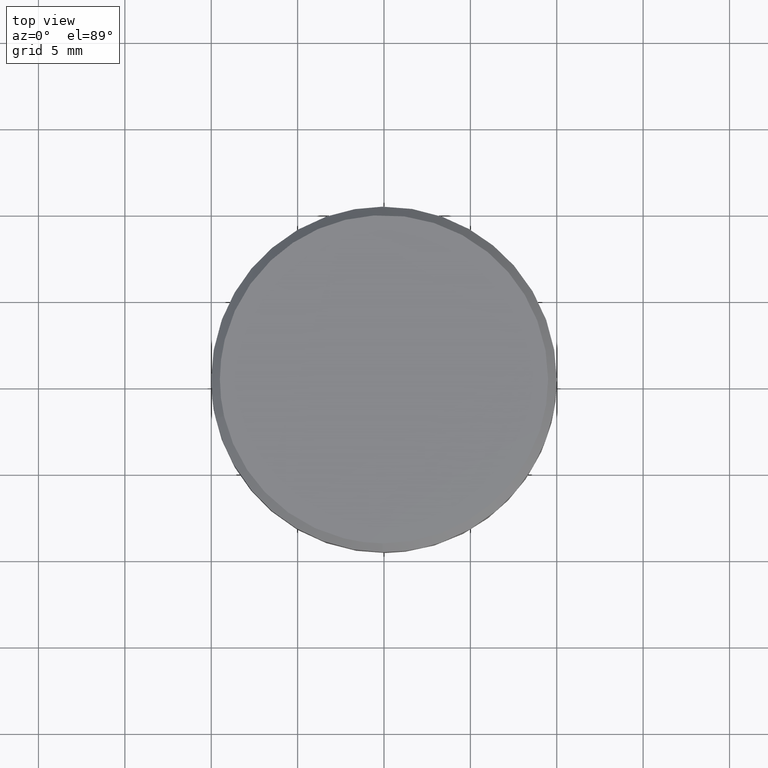
[diagram: clean part render]
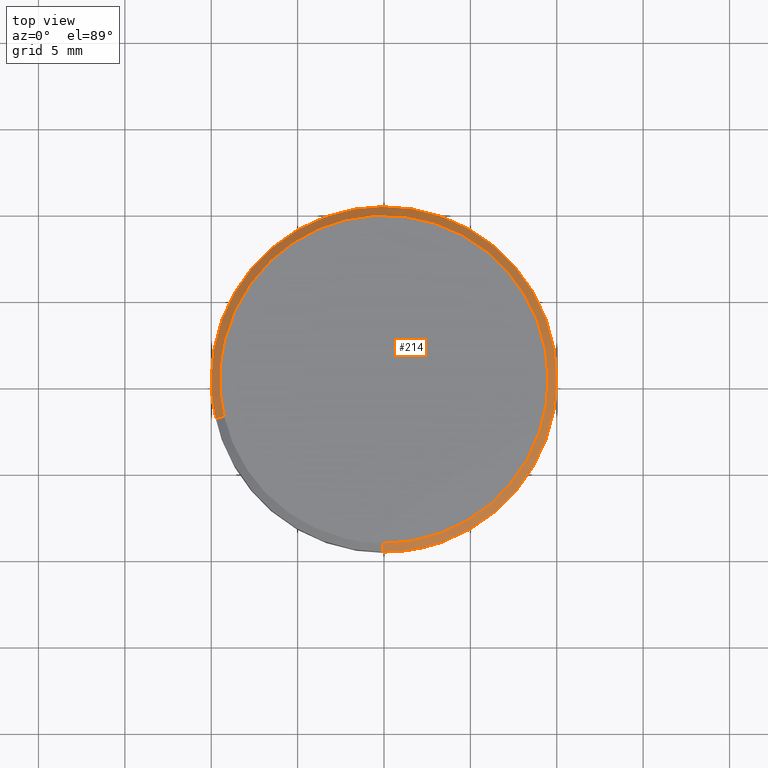
[diagram: same view with one face highlighted and labeled with its STEP entity id]
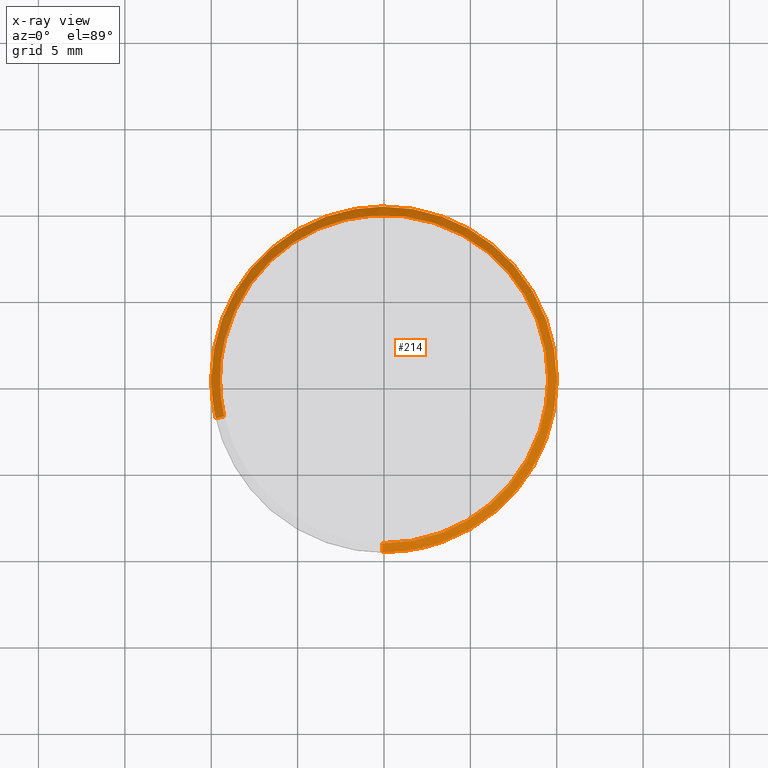
[diagram: x-ray of the same camera — body ghosted, the highlighted face saturated]
A machine part, top view. The second image highlights one B-rep face of the part: STEP entity #214.
The next image is the same camera in x-ray: the body ghosted, the highlighted face saturated — about 0% of this face is hidden behind the body in this view.
In plain terms, the highlighted face is a freeform B-spline surface patch.
Its self-contained STEP definition (entity closure, byte-faithful):
#44=CARTESIAN_POINT('',(-9.242894728281831,-2.140456327958789,11.512500000000115));
#45=CARTESIAN_POINT('',(-9.496966249899218,-1.043327506833363,11.512500000000115));
#46=CARTESIAN_POINT('',(-9.487138745071267,0.082793005540822,11.512500000000120));
#47=CARTESIAN_POINT('',(-9.404345739530445,9.569931750612090,11.512500000000120));
#48=CARTESIAN_POINT('',(0.082793005540822,9.487138745071267,11.512500000000120));
#49=CARTESIAN_POINT('',(9.569931750612090,9.404345739530445,11.512500000000120));
#50=CARTESIAN_POINT('',(9.487138745071267,-0.082793005540822,11.512500000000120));
#51=CARTESIAN_POINT('',(9.404345739530445,-9.569931750612090,11.512500000000120));
#52=CARTESIAN_POINT('',(-0.082793005540822,-9.487138745071267,11.512500000000120));
#53=CARTESIAN_POINT('',(-9.754663701873520,-2.258971054154414,10.987187500000111));
#54=CARTESIAN_POINT('',(-10.022802885804440,-1.101095409962056,10.987187500000115));
#55=CARTESIAN_POINT('',(-10.012431242780981,0.087377163719812,10.987187500000120));
#56=CARTESIAN_POINT('',(-9.925054079061164,10.099808406500786,10.987187500000116));
#57=CARTESIAN_POINT('',(0.087377163719812,10.012431242780981,10.987187500000120));
#58=CARTESIAN_POINT('',(10.099808406500786,9.925054079061164,10.987187500000116));
#59=CARTESIAN_POINT('',(10.012431242780981,-0.087377163719812,10.987187500000120));
#60=CARTESIAN_POINT('',(9.925054079061164,-10.099808406500786,10.987187500000116));
#61=CARTESIAN_POINT('',(-0.087377163719812,-10.012431242780981,10.987187500000120));
#69=(BOUNDED_SURFACE()B_SPLINE_SURFACE(2,1,((#44,#53),(#45,#54),(#46,#55),(#47,#56),(#48,#57),(#49,#58),(#50,#59),(#51,#60),(#52,#61)),.UNSPECIFIED.,.F.,.F.,.U.)B_SPLINE_SURFACE_WITH_KNOTS((3,2,2,2,3),(2,2),(0.0,2.654363350399271,19.244134290394701,35.833905230390137,52.423676170385569),(0.0,1.0),.UNSPECIFIED.)GEOMETRIC_REPRESENTATION_ITEM()RATIONAL_B_SPLINE_SURFACE(((0.921270302782944,0.921270302782944),(0.953137084989848,0.953137084989848),(1.0,1.0),(0.707106781186548,0.707106781186548),(1.0,1.0),(0.707106781186548,0.707106781186548),(1.0,1.0),(0.707106781186548,0.707106781186548),(1.0,1.0)))REPRESENTATION_ITEM('')SURFACE());
#70=CARTESIAN_POINT('',(-9.742181531785423,-2.256080451080788,10.999999999999631));
#71=VERTEX_POINT('',#70);
#72=CARTESIAN_POINT('',(-10.0,0.0,11.000000000000121));
#73=VERTEX_POINT('',#72);
#74=CARTESIAN_POINT('',(-9.742181531785423,-2.256080451080788,10.999999999999632));
#75=CARTESIAN_POINT('',(-10.0,-1.142771606801761,11.000000000000124));
#76=CARTESIAN_POINT('',(-10.0,0.0,11.000000000000121));
#84=(BOUNDED_CURVE()B_SPLINE_CURVE(2,(#74,#75,#76),.UNSPECIFIED.,.F.,.U.)B_SPLINE_CURVE_WITH_KNOTS((3,3),(0.961422971784468,1.0),.UNSPECIFIED.)CURVE()GEOMETRIC_REPRESENTATION_ITEM()RATIONAL_B_SPLINE_CURVE((0.923556557442556,0.954804200134782,1.0))REPRESENTATION_ITEM(''));
#85=EDGE_CURVE('',#71,#73,#84,.T.);
#86=ORIENTED_EDGE('',*,*,#85,.F.);
#87=CARTESIAN_POINT('',(-9.255072455192508,-2.143276428558680,11.499999999995969));
#88=VERTEX_POINT('',#87);
#89=CARTESIAN_POINT('',(-9.255072455192508,-2.143276428558680,11.499999999995969));
#90=CARTESIAN_POINT('',(-9.742181531785423,-2.256080451080788,10.999999999999631));
#91=QUASI_UNIFORM_CURVE('',1,(#89,#90),.UNSPECIFIED.,.F.,.U.);
#92=EDGE_CURVE('',#88,#71,#91,.T.);
#93=ORIENTED_EDGE('',*,*,#92,.F.);
#94=CARTESIAN_POINT('',(-9.500000000000000,0.0,11.500000000000121));
#95=VERTEX_POINT('',#94);
#96=CARTESIAN_POINT('',(-9.500000000000000,0.0,11.500000000000121));
#97=CARTESIAN_POINT('',(-9.500000000000002,-1.085633026494000,11.500000000000119));
#98=CARTESIAN_POINT('',(-9.255072455192508,-2.143276428558681,11.499999999995966));
#106=(BOUNDED_CURVE()B_SPLINE_CURVE(2,(#96,#97,#98),.UNSPECIFIED.,.F.,.U.)B_SPLINE_CURVE_WITH_KNOTS((3,3),(0.500000000000000,0.538577028216629),.UNSPECIFIED.)CURVE()GEOMETRIC_REPRESENTATION_ITEM()RATIONAL_B_SPLINE_CURVE((1.0,0.954804200133497,0.923556557440780))REPRESENTATION_ITEM(''));
#107=EDGE_CURVE('',#95,#88,#106,.T.);
#108=ORIENTED_EDGE('',*,*,#107,.F.);
#109=CARTESIAN_POINT('',(9.500000000000000,0.0,11.500000000000121));
#110=VERTEX_POINT('',#109);
#111=CARTESIAN_POINT('',(9.500000000000000,0.0,11.500000000000121));
#112=CARTESIAN_POINT('',(9.500000000000000,9.500000000000000,11.500000000000119));
#113=CARTESIAN_POINT('',(0.0,9.500000000000000,11.500000000000121));
#114=CARTESIAN_POINT('',(-9.500000000000000,9.500000000000000,11.500000000000119));
#115=CARTESIAN_POINT('',(-9.500000000000000,0.0,11.500000000000121));
#123=(BOUNDED_CURVE()B_SPLINE_CURVE(2,(#111,#112,#113,#114,#115),.UNSPECIFIED.,.F.,.U.)B_SPLINE_CURVE_WITH_KNOTS((3,2,3),(0.0,0.250000000000000,0.500000000000000),.UNSPECIFIED.)CURVE()GEOMETRIC_REPRESENTATION_ITEM()RATIONAL_B_SPLINE_CURVE((1.0,0.707106781186548,1.0,0.707106781186548,1.0))REPRESENTATION_ITEM(''));
#124=EDGE_CURVE('',#110,#95,#123,.T.);
#125=ORIENTED_EDGE('',*,*,#124,.F.);
#126=CARTESIAN_POINT('',(-0.082902087267422,-9.499638269113795,11.499999999995641));
#127=VERTEX_POINT('',#126);
#128=CARTESIAN_POINT('',(-0.082902087267422,-9.499638269113795,11.499999999995641));
#129=CARTESIAN_POINT('',(-0.041451832829497,-9.500000000000000,11.500000000000114));
#130=CARTESIAN_POINT('',(0.0,-9.500000000000000,11.500000000000121));
#131=CARTESIAN_POINT('',(9.500000000000000,-9.500000000000000,11.500000000000119));
#132=CARTESIAN_POINT('',(9.500000000000000,0.0,11.500000000000121));
#140=(BOUNDED_CURVE()B_SPLINE_CURVE(2,(#128,#129,#130,#131,#132),.UNSPECIFIED.,.F.,.U.)B_SPLINE_CURVE_WITH_KNOTS((3,2,3),(0.748460105663795,0.750000000000000,1.0),.UNSPECIFIED.)CURVE()GEOMETRIC_REPRESENTATION_ITEM()RATIONAL_B_SPLINE_CURVE((0.996414028097588,0.998195901564946,1.0,0.707106781186548,1.0))REPRESENTATION_ITEM(''));
#141=EDGE_CURVE('',#127,#110,#140,.T.);
#142=ORIENTED_EDGE('',*,*,#141,.F.);
#143=CARTESIAN_POINT('',(-0.087265355016032,-9.999619230645815,10.999999999995740));
#144=VERTEX_POINT('',#143);
#145=CARTESIAN_POINT('',(-0.082902087267422,-9.499638269113795,11.499999999995641));
#146=CARTESIAN_POINT('',(-0.087265355016032,-9.999619230645815,10.999999999995740));
#147=QUASI_UNIFORM_CURVE('',1,(#145,#146),.UNSPECIFIED.,.F.,.U.);
#148=EDGE_CURVE('',#127,#144,#147,.T.);
#149=ORIENTED_EDGE('',*,*,#148,.T.);
#150=CARTESIAN_POINT('',(1.241271964109417,-9.922663146103972,11.000000000000171));
#151=VERTEX_POINT('',#150);
#152=CARTESIAN_POINT('',(1.241271964109417,-9.922663146103972,11.000000000000178));
#153=CARTESIAN_POINT('',(0.623045199834321,-10.0,11.000000000000121));
#154=CARTESIAN_POINT('',(0.0,-10.0,11.000000000000121));
#155=CARTESIAN_POINT('',(-0.043633508239263,-10.0,11.000000000000117));
#156=CARTESIAN_POINT('',(-0.087265355016032,-9.999619230645815,10.999999999995740));
#164=(BOUNDED_CURVE()B_SPLINE_CURVE(2,(#152,#153,#154,#155,#156),.UNSPECIFIED.,.F.,.U.)B_SPLINE_CURVE_WITH_KNOTS((3,2,3),(0.728526207961082,0.750000000000000,0.751539894336123),.UNSPECIFIED.)CURVE()GEOMETRIC_REPRESENTATION_ITEM()RATIONAL_B_SPLINE_CURVE((0.954005696006546,0.974841887718362,1.0,0.998195901565041,0.996414028097777))REPRESENTATION_ITEM(''));
#165=EDGE_CURVE('',#151,#144,#164,.T.);
#166=ORIENTED_EDGE('',*,*,#165,.F.);
#167=CARTESIAN_POINT('',(10.0,0.0,11.000000000000121));
#168=VERTEX_POINT('',#167);
#169=CARTESIAN_POINT('',(10.0,0.0,11.000000000000121));
#170=CARTESIAN_POINT('',(10.0,-8.826993224421114,11.000000000000119));
#171=CARTESIAN_POINT('',(1.241271964109417,-9.922663146103972,11.000000000000178));
#179=(BOUNDED_CURVE()B_SPLINE_CURVE(2,(#169,#170,#171),.UNSPECIFIED.,.F.,.U.)B_SPLINE_CURVE_WITH_KNOTS((3,3),(0.500000000000000,0.728526207961082),.UNSPECIFIED.)CURVE()GEOMETRIC_REPRESENTATION_ITEM()RATIONAL_B_SPLINE_CURVE((1.0,0.732264893468185,0.954005696006546))REPRESENTATION_ITEM(''));
#180=EDGE_CURVE('',#168,#151,#179,.T.);
#181=ORIENTED_EDGE('',*,*,#180,.F.);
#182=CARTESIAN_POINT('',(-0.087255723740062,9.999619314683024,11.000000000000080));
#183=VERTEX_POINT('',#182);
#184=CARTESIAN_POINT('',(-0.087255723740062,9.999619314683024,11.000000000000075));
#185=CARTESIAN_POINT('',(-0.043628692310169,9.999999999999998,11.000000000000115));
#186=CARTESIAN_POINT('',(0.0,10.0,11.000000000000121));
#187=CARTESIAN_POINT('',(10.000000000000002,10.000000000000002,11.000000000000119));
#188=CARTESIAN_POINT('',(10.0,0.0,11.000000000000121));
#196=(BOUNDED_CURVE()B_SPLINE_CURVE(2,(#184,#185,#186,#187,#188),.UNSPECIFIED.,.F.,.U.)B_SPLINE_CURVE_WITH_KNOTS((3,2,3),(0.248460275318907,0.250000000000000,0.500000000000000),.UNSPECIFIED.)CURVE()GEOMETRIC_REPRESENTATION_ITEM()RATIONAL_B_SPLINE_CURVE((0.996414420727321,0.998196100328273,1.0,0.707106781186548,1.0))REPRESENTATION_ITEM(''));
#197=EDGE_CURVE('',#183,#168,#196,.T.);
#198=ORIENTED_EDGE('',*,*,#197,.F.);
#199=CARTESIAN_POINT('',(-10.0,0.0,11.000000000000121));
#200=CARTESIAN_POINT('',(-10.0,9.913121654241214,11.000000000000121));
#201=CARTESIAN_POINT('',(-0.087255723740062,9.999619314683024,11.000000000000075));
#209=(BOUNDED_CURVE()B_SPLINE_CURVE(2,(#199,#200,#201),.UNSPECIFIED.,.F.,.U.)B_SPLINE_CURVE_WITH_KNOTS((3,3),(0.0,0.248460275318907),.UNSPECIFIED.)CURVE()GEOMETRIC_REPRESENTATION_ITEM()RATIONAL_B_SPLINE_CURVE((1.0,0.708910680858274,0.996414420727321))REPRESENTATION_ITEM(''));
#210=EDGE_CURVE('',#73,#183,#209,.T.);
#211=ORIENTED_EDGE('',*,*,#210,.F.);
#212=EDGE_LOOP('',(#86,#93,#108,#125,#142,#149,#166,#181,#198,#211));
#213=FACE_OUTER_BOUND('',#212,.T.);
#214=ADVANCED_FACE('',(#213),#69,.T.);